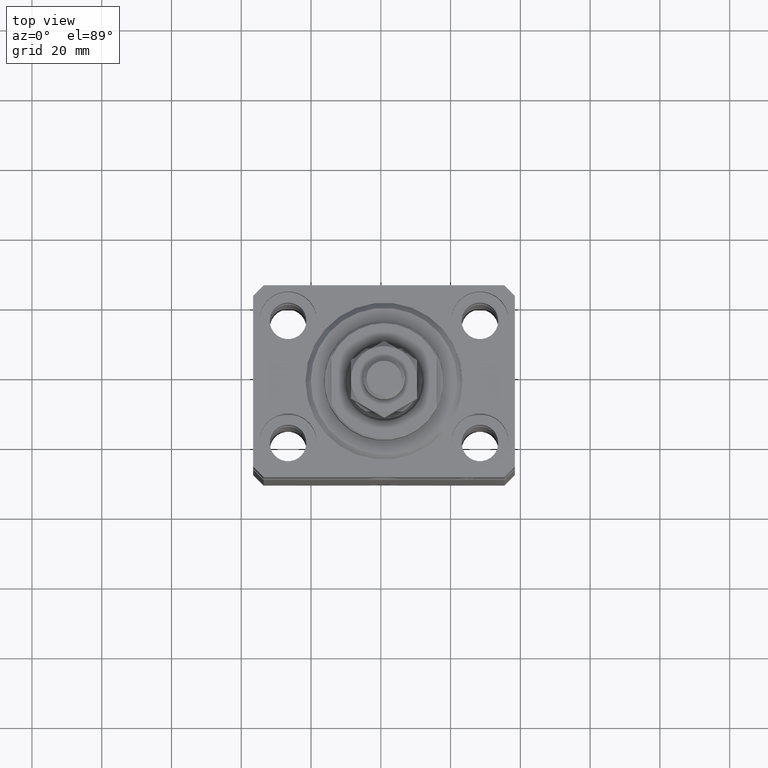
[diagram: clean part render]
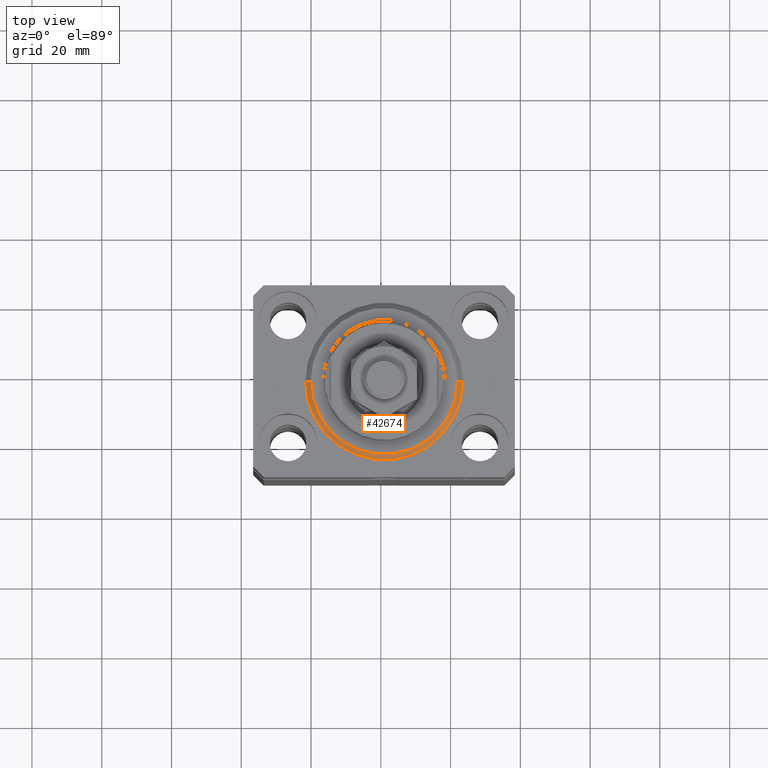
[diagram: same view with one face highlighted and labeled with its STEP entity id]
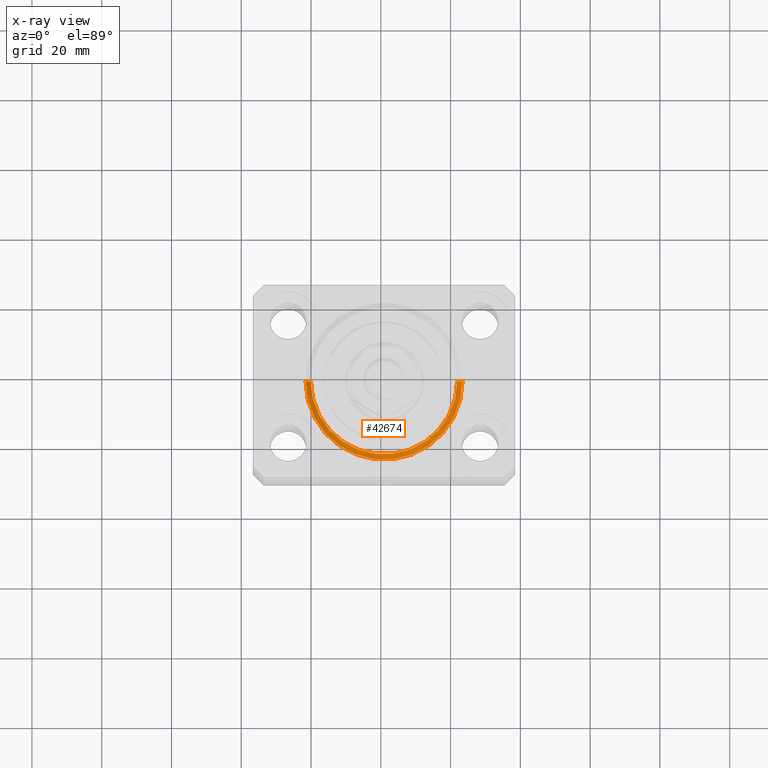
[diagram: x-ray of the same camera — body ghosted, the highlighted face saturated]
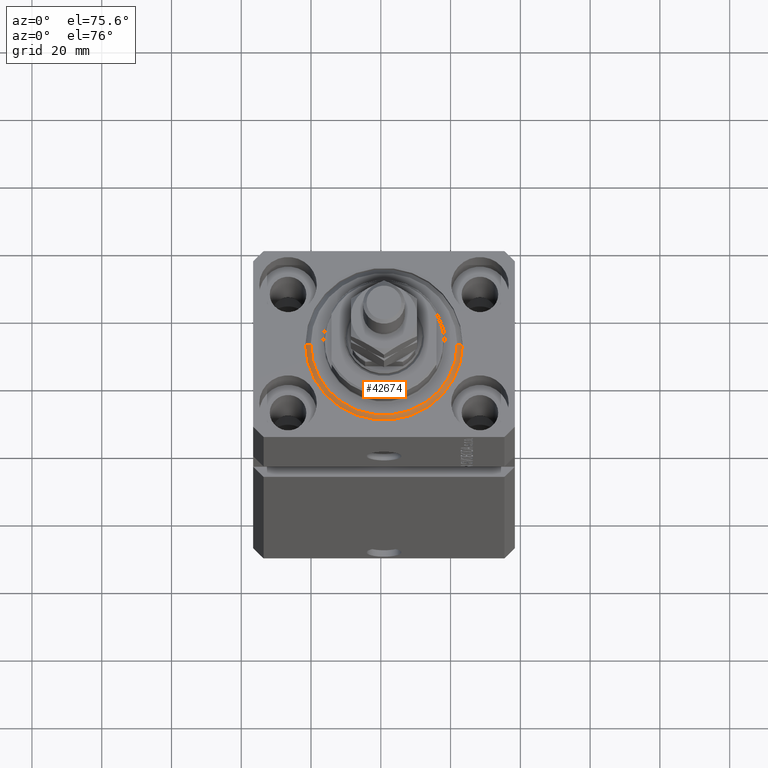
[diagram: same view with one face highlighted and labeled with its STEP entity id]
A machine part, top view. The second image highlights one B-rep face of the part: STEP entity #42674.
The next image is the same camera in x-ray: the body ghosted, the highlighted face saturated — about 0% of this face is hidden behind the body in this view.
A second angle (auxiliary view) of the same face is appended — the face is thin or edge-on in the first view.
In plain terms, the highlighted conical surface has half-angle 45 deg.
Its self-contained STEP definition (entity closure, byte-faithful):
#179 = FACE_OUTER_BOUND ( 'NONE', #22925, .T. ) ;
#2517 = CARTESIAN_POINT ( 'NONE',  ( -20.99999999999995381, 2.663606788145490261E-15, 0.000000000000000000 ) ) ;
#4259 = ORIENTED_EDGE ( 'NONE', *, *, #9118, .F. ) ;
#5891 = CIRCLE ( 'NONE', #7359, 22.50000000000000355 ) ;
#7073 = CARTESIAN_POINT ( 'NONE',  ( 0.000000000000000000, 0.000000000000000000, 0.000000000000000000 ) ) ;
#7359 = AXIS2_PLACEMENT_3D ( 'NONE', #44825, #12739, #9735 ) ;
#7416 = LINE ( 'NONE', #28618, #33569 ) ;
#9118 = EDGE_CURVE ( 'NONE', #32576, #31620, #24689, .T. ) ;
#9735 = DIRECTION ( 'NONE',  ( 1.000000000000000000, 0.000000000000000000, 0.000000000000000000 ) ) ;
#9907 = CARTESIAN_POINT ( 'NONE',  ( 0.000000000000000000, 0.000000000000000000, 1.500000000000039524 ) ) ;
#10541 = DIRECTION ( 'NONE',  ( -0.000000000000000000, -0.000000000000000000, -1.000000000000000000 ) ) ;
#10845 = CARTESIAN_POINT ( 'NONE',  ( 20.99999999999995381, 0.000000000000000000, 0.000000000000000000 ) ) ;
#12739 = DIRECTION ( 'NONE',  ( -0.000000000000000000, -0.000000000000000000, 1.000000000000000000 ) ) ;
#13278 = CARTESIAN_POINT ( 'NONE',  ( 22.50000000000000355, 0.000000000000000000, 1.500000000000039524 ) ) ;
#13630 = AXIS2_PLACEMENT_3D ( 'NONE', #7073, #10541, #14460 ) ;
#14281 = DIRECTION ( 'NONE',  ( 1.000000000000000000, 0.000000000000000000, 0.000000000000000000 ) ) ;
#14460 = DIRECTION ( 'NONE',  ( 1.000000000000000000, 0.000000000000000000, 0.000000000000000000 ) ) ;
#16418 = CARTESIAN_POINT ( 'NONE',  ( 22.50000000000000355, 2.755455298081544383E-15, 1.500000000000039524 ) ) ;
#20434 = DIRECTION ( 'NONE',  ( 0.7071067811865500152, 0.000000000000000000, 0.7071067811865451302 ) ) ;
#21592 = CARTESIAN_POINT ( 'NONE',  ( -22.50000000000000355, 0.000000000000000000, 1.500000000000039524 ) ) ;
#22925 = EDGE_LOOP ( 'NONE', ( #32012, #4259, #45382, #42063 ) ) ;
#23160 = VERTEX_POINT ( 'NONE', #16418 ) ;
#23201 = CONICAL_SURFACE ( 'NONE', #31305, 22.50000000000000355, 0.7853981633974517207 ) ;
#24201 = DIRECTION ( 'NONE',  ( -0.000000000000000000, -0.000000000000000000, 1.000000000000000000 ) ) ;
#24689 = CIRCLE ( 'NONE', #13630, 20.99999999999995381 ) ;
#25625 = EDGE_CURVE ( 'NONE', #42222, #23160, #5891, .T. ) ;
#27778 = LINE ( 'NONE', #13278, #43599 ) ;
#28618 = CARTESIAN_POINT ( 'NONE',  ( -22.50000000000000355, 2.755455298081545172E-15, 1.500000000000039524 ) ) ;
#29052 = EDGE_CURVE ( 'NONE', #32576, #23160, #27778, .T. ) ;
#31305 = AXIS2_PLACEMENT_3D ( 'NONE', #9907, #24201, #14281 ) ;
#31620 = VERTEX_POINT ( 'NONE', #2517 ) ;
#32012 = ORIENTED_EDGE ( 'NONE', *, *, #44451, .F. ) ;
#32576 = VERTEX_POINT ( 'NONE', #10845 ) ;
#33569 = VECTOR ( 'NONE', #42720, 1000.000000000000114 ) ;
#42063 = ORIENTED_EDGE ( 'NONE', *, *, #25625, .F. ) ;
#42222 = VERTEX_POINT ( 'NONE', #21592 ) ;
#42674 = ADVANCED_FACE ( 'NONE', ( #179 ), #23201, .T. ) ;
#42720 = DIRECTION ( 'NONE',  ( -0.7071067811865500152, 8.659560562354962440E-17, 0.7071067811865451302 ) ) ;
#43599 = VECTOR ( 'NONE', #20434, 1000.000000000000114 ) ;
#44451 = EDGE_CURVE ( 'NONE', #31620, #42222, #7416, .T. ) ;
#44825 = CARTESIAN_POINT ( 'NONE',  ( 0.000000000000000000, 0.000000000000000000, 1.500000000000039524 ) ) ;
#45382 = ORIENTED_EDGE ( 'NONE', *, *, #29052, .T. ) ;